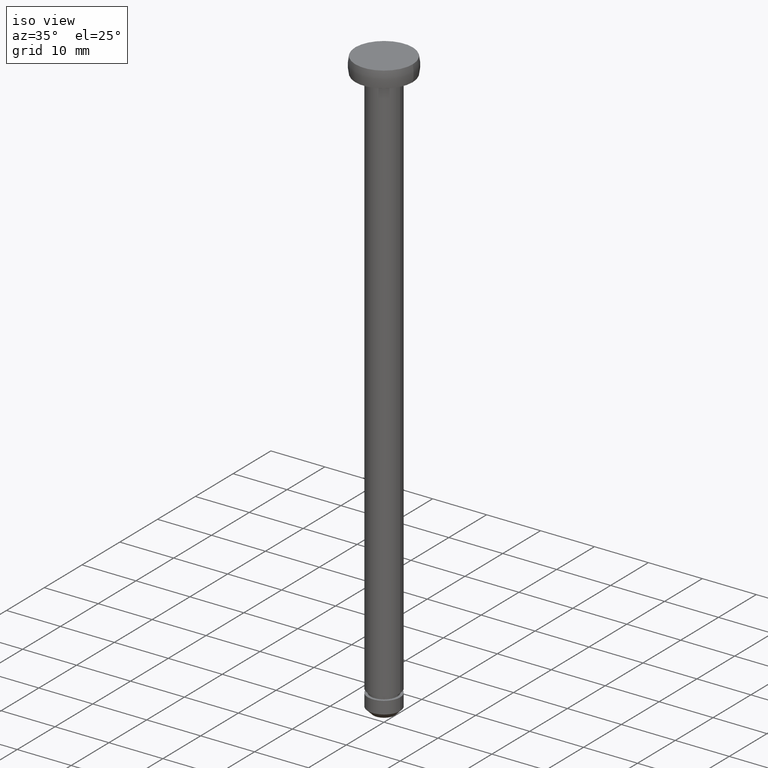
[diagram: clean part render]
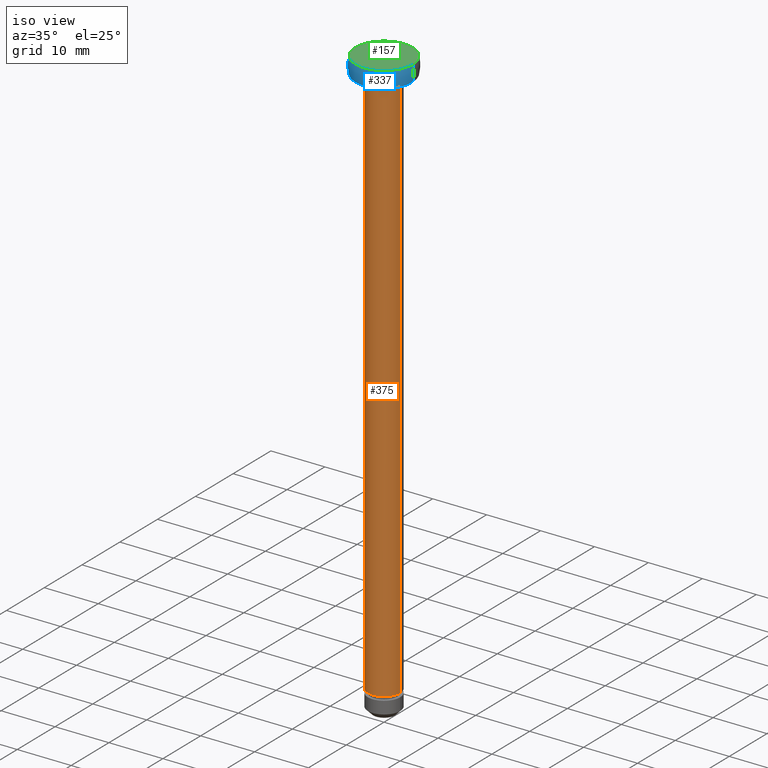
[diagram: same view with three faces highlighted in distinct colors, each labeled with its STEP entity id]
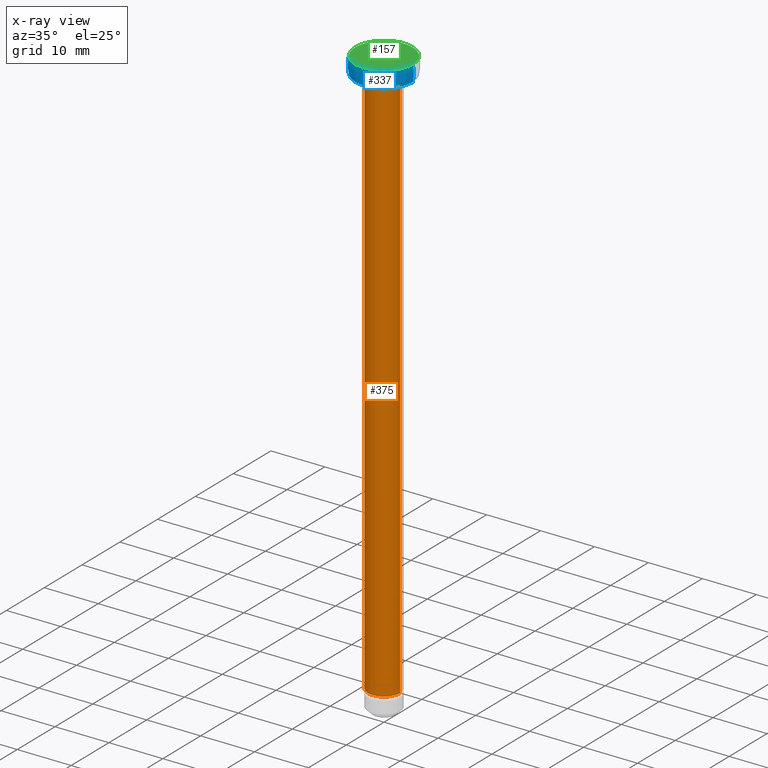
[diagram: x-ray of the same camera — body ghosted, the three highlighted faces saturated]
A machine part, iso view with three faces highlighted in distinct colors.
The next image is the same camera in x-ray (body ghosted, the three faces saturated) — at least one of them is partly hidden behind the body in this view.
Their STEP definitions:

[orange] entity #375 — the highlighted cylindrical surface (edge-blend (fillet) strip) has radius 3 mm, axis along (0, 0, -1).
#8 = ORIENTED_EDGE ( 'NONE', *, *, #219, .T. ) ;
#30 = DIRECTION ( 'NONE',  ( 0.0000000000000000000, 0.0000000000000000000, -1.000000000000000000 ) ) ;
#72 = EDGE_CURVE ( 'NONE', #442, #108, #343, .T. ) ;
#81 = CIRCLE ( 'NONE', #224, 3.000000000000000000 ) ;
#99 = CARTESIAN_POINT ( 'NONE',  ( 3.000000000000000000, 3.673940397442059900E-016, -106.0000000180433900 ) ) ;
#105 = VERTEX_POINT ( 'NONE', #99 ) ;
#108 = VERTEX_POINT ( 'NONE', #418 ) ;
#112 = DIRECTION ( 'NONE',  ( -1.000000000000000000, 0.0000000000000000000, 0.0000000000000000000 ) ) ;
#118 = CYLINDRICAL_SURFACE ( 'NONE', #366, 3.000000000000000000 ) ;
#127 = CARTESIAN_POINT ( 'NONE',  ( -3.000000000000000000, 0.0000000000000000000, -3.000000018043495100 ) ) ;
#129 = CARTESIAN_POINT ( 'NONE',  ( 3.000000000000000000, 3.673940397442059900E-016, -6.132507950209293800E-014 ) ) ;
#131 = VECTOR ( 'NONE', #295, 1000.000000000000000 ) ;
#141 = VECTOR ( 'NONE', #216, 1000.000000000000000 ) ;
#146 = CARTESIAN_POINT ( 'NONE',  ( -3.000000000000000000, 0.0000000000000000000, -6.132507950209293800E-014 ) ) ;
#153 = EDGE_CURVE ( 'NONE', #105, #108, #81, .T. ) ;
#216 = DIRECTION ( 'NONE',  ( 0.0000000000000000000, 0.0000000000000000000, -1.000000000000000000 ) ) ;
#219 = EDGE_CURVE ( 'NONE', #414, #442, #389, .T. ) ;
#220 = LINE ( 'NONE', #129, #131 ) ;
#224 = AXIS2_PLACEMENT_3D ( 'NONE', #424, #385, #466 ) ;
#292 = ORIENTED_EDGE ( 'NONE', *, *, #339, .F. ) ;
#295 = DIRECTION ( 'NONE',  ( 0.0000000000000000000, 0.0000000000000000000, -1.000000000000000000 ) ) ;
#306 = DIRECTION ( 'NONE',  ( -1.000000000000000000, 0.0000000000000000000, 0.0000000000000000000 ) ) ;
#339 = EDGE_CURVE ( 'NONE', #414, #105, #220, .T. ) ;
#343 = LINE ( 'NONE', #146, #141 ) ;
#364 = CARTESIAN_POINT ( 'NONE',  ( 3.000000000000000000, 3.673940397442059900E-016, -3.000000018043495100 ) ) ;
#366 = AXIS2_PLACEMENT_3D ( 'NONE', #367, #441, #306 ) ;
#367 = CARTESIAN_POINT ( 'NONE',  ( 0.0000000000000000000, 0.0000000000000000000, -6.132507950209293800E-014 ) ) ;
#375 = ADVANCED_FACE ( 'NONE', ( #407 ), #118, .T. ) ;
#385 = DIRECTION ( 'NONE',  ( 0.0000000000000000000, 0.0000000000000000000, -1.000000000000000000 ) ) ;
#386 = CARTESIAN_POINT ( 'NONE',  ( 0.0000000000000000000, 0.0000000000000000000, -3.000000018043495100 ) ) ;
#389 = CIRCLE ( 'NONE', #419, 3.000000000000000000 ) ;
#390 = ORIENTED_EDGE ( 'NONE', *, *, #153, .F. ) ;
#407 = FACE_OUTER_BOUND ( 'NONE', #456, .T. ) ;
#414 = VERTEX_POINT ( 'NONE', #364 ) ;
#418 = CARTESIAN_POINT ( 'NONE',  ( -3.000000000000000000, 0.0000000000000000000, -106.0000000180433900 ) ) ;
#419 = AXIS2_PLACEMENT_3D ( 'NONE', #386, #30, #112 ) ;
#424 = CARTESIAN_POINT ( 'NONE',  ( 0.0000000000000000000, 0.0000000000000000000, -106.0000000180433900 ) ) ;
#432 = ORIENTED_EDGE ( 'NONE', *, *, #72, .T. ) ;
#441 = DIRECTION ( 'NONE',  ( 0.0000000000000000000, 0.0000000000000000000, -1.000000000000000000 ) ) ;
#442 = VERTEX_POINT ( 'NONE', #127 ) ;
#456 = EDGE_LOOP ( 'NONE', ( #292, #8, #432, #390 ) ) ;
#466 = DIRECTION ( 'NONE',  ( -1.000000000000000000, 0.0000000000000000000, 0.0000000000000000000 ) ) ;

[blue] entity #337 — the highlighted toroidal blend (fillet) surface has major radius 1.1428 mm and minor (blend) radius 6.6428 mm.
#5 = CIRCLE ( 'NONE', #444, 6.642766791230086700 ) ;
#20 = CARTESIAN_POINT ( 'NONE',  ( 5.328427118366799500, 6.525441214997859000E-016, -6.132507696099412100E-014 ) ) ;
#27 = VERTEX_POINT ( 'NONE', #20 ) ;
#33 = EDGE_CURVE ( 'NONE', #27, #350, #208, .T. ) ;
#41 = EDGE_CURVE ( 'NONE', #264, #242, #71, .T. ) ;
#59 = CARTESIAN_POINT ( 'NONE',  ( -5.328427118366800400, 0.0000000000000000000, -3.000000018043550200 ) ) ;
#71 = CIRCLE ( 'NONE', #454, 5.328427118366800400 ) ;
#74 = ORIENTED_EDGE ( 'NONE', *, *, #33, .T. ) ;
#80 = DIRECTION ( 'NONE',  ( -1.000000000000000000, -1.224646799147353200E-016, 0.0000000000000000000 ) ) ;
#106 = CIRCLE ( 'NONE', #316, 6.642766791230087600 ) ;
#117 = ORIENTED_EDGE ( 'NONE', *, *, #41, .F. ) ;
#173 = CARTESIAN_POINT ( 'NONE',  ( 1.142766791230102100, 0.0000000000000000000, -1.500000009021820000 ) ) ;
#192 = EDGE_CURVE ( 'NONE', #350, #242, #5, .T. ) ;
#196 = CARTESIAN_POINT ( 'NONE',  ( -1.142766791230102100, -1.399485693051835900E-016, -1.500000009021820000 ) ) ;
#202 = DIRECTION ( 'NONE',  ( 0.0000000000000000000, 0.0000000000000000000, -1.000000000000000000 ) ) ;
#207 = DIRECTION ( 'NONE',  ( 0.0000000000000000000, 0.0000000000000000000, -1.000000000000000000 ) ) ;
#208 = CIRCLE ( 'NONE', #429, 5.328427118366799500 ) ;
#233 = TOROIDAL_SURFACE ( 'NONE', #294, -1.142766791230102100, 6.642766791230087600 ) ;
#241 = DIRECTION ( 'NONE',  ( 0.0000000000000000000, 0.0000000000000000000, -1.000000000000000000 ) ) ;
#242 = VERTEX_POINT ( 'NONE', #59 ) ;
#247 = CARTESIAN_POINT ( 'NONE',  ( 0.0000000000000000000, 0.0000000000000000000, -3.000000018043550200 ) ) ;
#264 = VERTEX_POINT ( 'NONE', #355 ) ;
#294 = AXIS2_PLACEMENT_3D ( 'NONE', #402, #322, #436 ) ;
#308 = DIRECTION ( 'NONE',  ( -1.000000000000000000, 0.0000000000000000000, 0.0000000000000000000 ) ) ;
#316 = AXIS2_PLACEMENT_3D ( 'NONE', #196, #434, #80 ) ;
#317 = DIRECTION ( 'NONE',  ( -0.0000000000000000000, -1.000000000000000000, -0.0000000000000000000 ) ) ;
#322 = DIRECTION ( 'NONE',  ( 0.0000000000000000000, 0.0000000000000000000, -1.000000000000000000 ) ) ;
#323 = ORIENTED_EDGE ( 'NONE', *, *, #192, .T. ) ;
#337 = ADVANCED_FACE ( 'NONE', ( #415 ), #233, .T. ) ;
#341 = EDGE_LOOP ( 'NONE', ( #397, #74, #323, #117 ) ) ;
#350 = VERTEX_POINT ( 'NONE', #408 ) ;
#353 = CARTESIAN_POINT ( 'NONE',  ( 0.0000000000000000000, 0.0000000000000000000, -6.132507696099412100E-014 ) ) ;
#355 = CARTESIAN_POINT ( 'NONE',  ( 5.328427118366800400, 6.525441214997859000E-016, -3.000000018043550200 ) ) ;
#396 = EDGE_CURVE ( 'NONE', #27, #264, #106, .T. ) ;
#397 = ORIENTED_EDGE ( 'NONE', *, *, #396, .F. ) ;
#402 = CARTESIAN_POINT ( 'NONE',  ( 0.0000000000000000000, 0.0000000000000000000, -1.500000009021820000 ) ) ;
#408 = CARTESIAN_POINT ( 'NONE',  ( -5.328427118366799500, 0.0000000000000000000, -6.132507696099412100E-014 ) ) ;
#415 = FACE_OUTER_BOUND ( 'NONE', #341, .T. ) ;
#427 = DIRECTION ( 'NONE',  ( -1.000000000000000000, 0.0000000000000000000, 0.0000000000000000000 ) ) ;
#429 = AXIS2_PLACEMENT_3D ( 'NONE', #353, #202, #308 ) ;
#434 = DIRECTION ( 'NONE',  ( -1.224646799147353200E-016, 1.000000000000000000, 0.0000000000000000000 ) ) ;
#436 = DIRECTION ( 'NONE',  ( -1.000000000000000000, 0.0000000000000000000, 0.0000000000000000000 ) ) ;
#444 = AXIS2_PLACEMENT_3D ( 'NONE', #173, #317, #207 ) ;
#454 = AXIS2_PLACEMENT_3D ( 'NONE', #247, #241, #427 ) ;

[green] entity #157 — the highlighted planar face has unit normal (0, 0, 1).
#20 = CARTESIAN_POINT ( 'NONE',  ( 5.328427118366799500, 6.525441214997859000E-016, -6.132507696099412100E-014 ) ) ;
#27 = VERTEX_POINT ( 'NONE', #20 ) ;
#33 = EDGE_CURVE ( 'NONE', #27, #350, #208, .T. ) ;
#135 = PLANE ( 'NONE',  #299 ) ;
#157 = ADVANCED_FACE ( 'NONE', ( #384 ), #135, .T. ) ;
#202 = DIRECTION ( 'NONE',  ( 0.0000000000000000000, 0.0000000000000000000, -1.000000000000000000 ) ) ;
#208 = CIRCLE ( 'NONE', #429, 5.328427118366799500 ) ;
#258 = DIRECTION ( 'NONE',  ( -1.000000000000000000, 0.0000000000000000000, 0.0000000000000000000 ) ) ;
#268 = AXIS2_PLACEMENT_3D ( 'NONE', #291, #269, #258 ) ;
#269 = DIRECTION ( 'NONE',  ( 0.0000000000000000000, 0.0000000000000000000, -1.000000000000000000 ) ) ;
#291 = CARTESIAN_POINT ( 'NONE',  ( 0.0000000000000000000, 0.0000000000000000000, -6.132507696099412100E-014 ) ) ;
#299 = AXIS2_PLACEMENT_3D ( 'NONE', #318, #461, #420 ) ;
#305 = EDGE_LOOP ( 'NONE', ( #421, #449 ) ) ;
#308 = DIRECTION ( 'NONE',  ( -1.000000000000000000, 0.0000000000000000000, 0.0000000000000000000 ) ) ;
#315 = CIRCLE ( 'NONE', #268, 5.328427118366799500 ) ;
#318 = CARTESIAN_POINT ( 'NONE',  ( 5.328427118366799500, 0.0000000000000000000, -6.132507823154353000E-014 ) ) ;
#342 = EDGE_CURVE ( 'NONE', #350, #27, #315, .T. ) ;
#350 = VERTEX_POINT ( 'NONE', #408 ) ;
#353 = CARTESIAN_POINT ( 'NONE',  ( 0.0000000000000000000, 0.0000000000000000000, -6.132507696099412100E-014 ) ) ;
#384 = FACE_OUTER_BOUND ( 'NONE', #305, .T. ) ;
#408 = CARTESIAN_POINT ( 'NONE',  ( -5.328427118366799500, 0.0000000000000000000, -6.132507696099412100E-014 ) ) ;
#420 = DIRECTION ( 'NONE',  ( 1.000000000000000000, 0.0000000000000000000, 0.0000000000000000000 ) ) ;
#421 = ORIENTED_EDGE ( 'NONE', *, *, #342, .F. ) ;
#429 = AXIS2_PLACEMENT_3D ( 'NONE', #353, #202, #308 ) ;
#449 = ORIENTED_EDGE ( 'NONE', *, *, #33, .F. ) ;
#461 = DIRECTION ( 'NONE',  ( 0.0000000000000000000, -0.0000000000000000000, 1.000000000000000000 ) ) ;